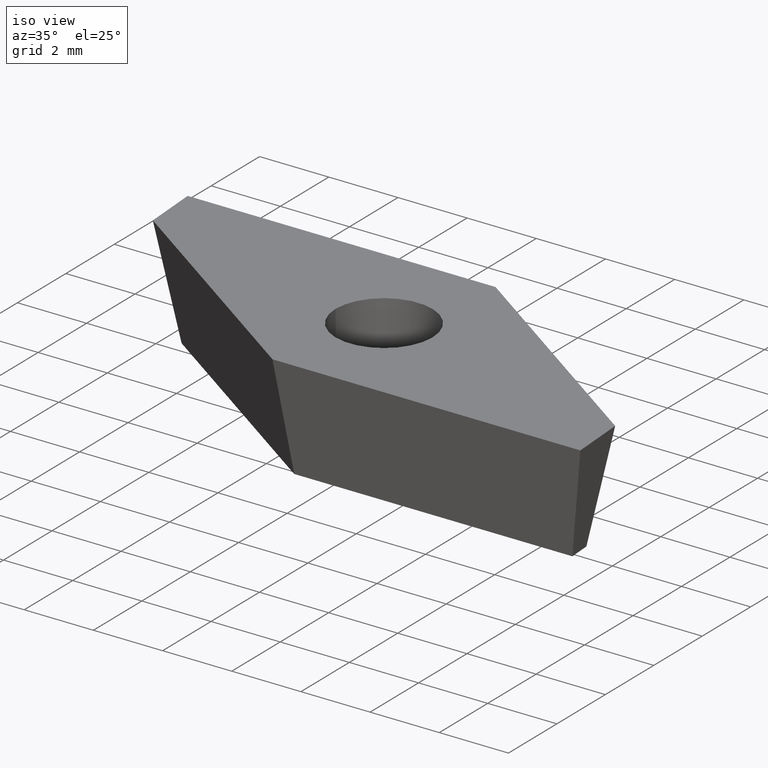
[diagram: clean part render]
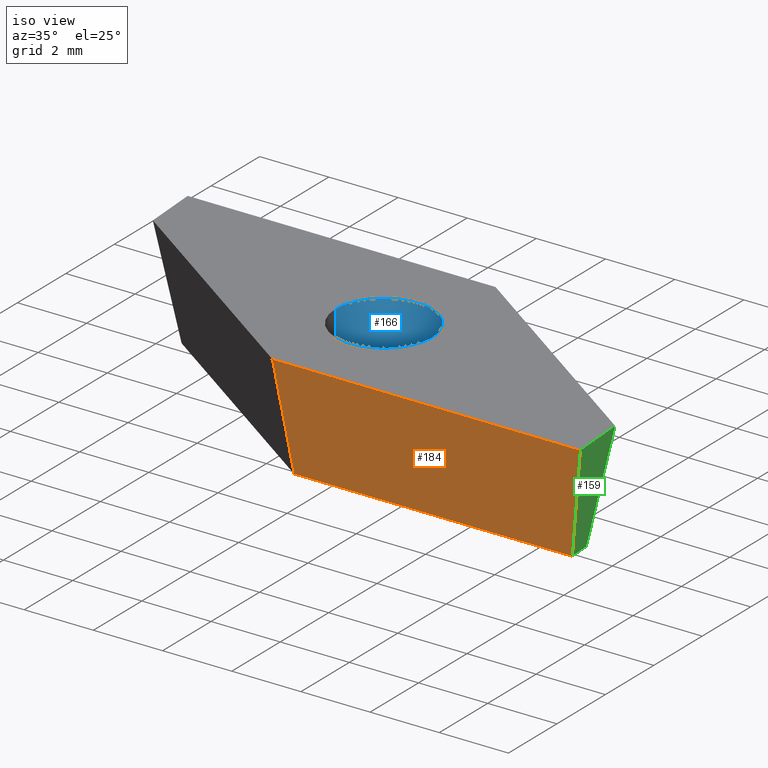
[diagram: same view with three faces highlighted in distinct colors, each labeled with its STEP entity id]
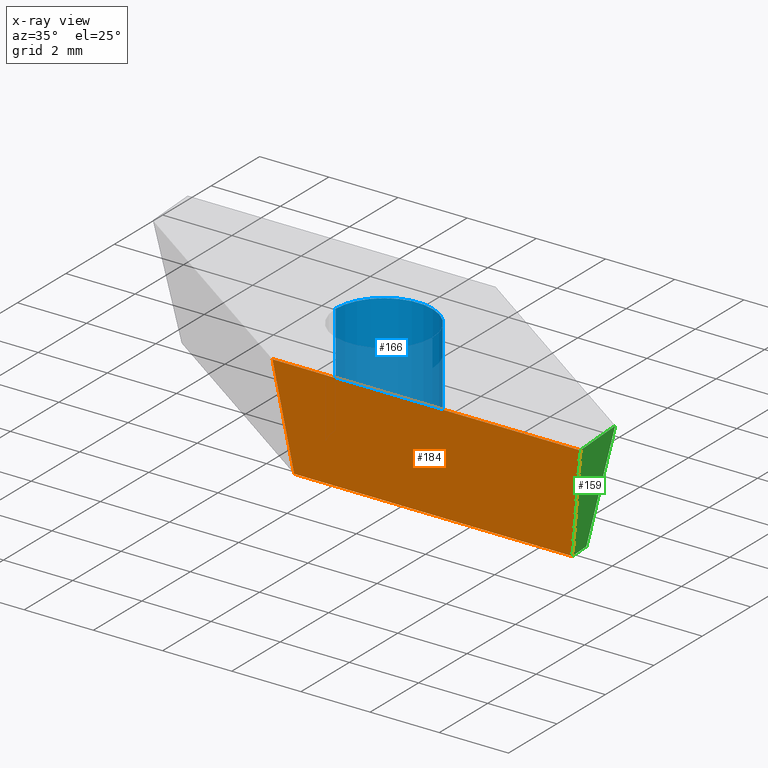
[diagram: x-ray of the same camera — body ghosted, the three highlighted faces saturated]
A machine part, iso view with three faces highlighted in distinct colors.
The next image is the same camera in x-ray (body ghosted, the three faces saturated) — at least one of them is partly hidden behind the body in this view.
Their STEP definitions:

[orange] entity #184 — the highlighted planar face has unit normal (0, -0.9816, -0.1908).
#18 = CARTESIAN_POINT ( 'NONE',  ( -1.001073654690762100, -3.174999999999999800, 0.0000000000000000000 ) ) ;
#21 = CARTESIAN_POINT ( 'NONE',  ( -1.001073654690762100, -2.556870616942053400, -3.180000000000000200 ) ) ;
#28 = VECTOR ( 'NONE', #286, 1000.000000000000000 ) ;
#30 = VECTOR ( 'NONE', #103, 1000.000000000000100 ) ;
#35 = CARTESIAN_POINT ( 'NONE',  ( -1.001073654690761300, -3.174999999999999800, 4.532429341667184100E-017 ) ) ;
#39 = LINE ( 'NONE', #18, #28 ) ;
#43 = LINE ( 'NONE', #129, #30 ) ;
#58 = EDGE_CURVE ( 'NONE', #295, #284, #308, .T. ) ;
#64 = DIRECTION ( 'NONE',  ( -1.000000000000000000, -6.066100545593014700E-017, 0.0000000000000000000 ) ) ;
#69 = FACE_OUTER_BOUND ( 'NONE', #291, .T. ) ;
#70 = ORIENTED_EDGE ( 'NONE', *, *, #317, .T. ) ;
#72 = EDGE_CURVE ( 'NONE', #284, #250, #142, .T. ) ;
#73 = ORIENTED_EDGE ( 'NONE', *, *, #72, .F. ) ;
#103 = DIRECTION ( 'NONE',  ( 0.2004640746510999200, -0.1869357738407769200, 0.9617011860410842300 ) ) ;
#108 = CARTESIAN_POINT ( 'NONE',  ( -0.8061782088420796900, -2.556870616942053400, -3.180000000000000200 ) ) ;
#129 = CARTESIAN_POINT ( 'NONE',  ( 7.900000000000002100, -3.174999999999999400, 0.0000000000000000000 ) ) ;
#135 = VECTOR ( 'NONE', #257, 1000.000000000000100 ) ;
#141 = VECTOR ( 'NONE', #64, 1000.000000000000000 ) ;
#142 = LINE ( 'NONE', #35, #135 ) ;
#150 = CARTESIAN_POINT ( 'NONE',  ( -1.001073654690762100, -3.174999999999999800, 0.0000000000000000000 ) ) ;
#180 = VERTEX_POINT ( 'NONE', #330 ) ;
#184 = ADVANCED_FACE ( 'NONE', ( #69 ), #287, .T. ) ;
#186 = CARTESIAN_POINT ( 'NONE',  ( 7.237137390861799500, -2.556870616942053000, -3.180000000000000200 ) ) ;
#230 = ORIENTED_EDGE ( 'NONE', *, *, #58, .F. ) ;
#231 = ORIENTED_EDGE ( 'NONE', *, *, #321, .T. ) ;
#250 = VERTEX_POINT ( 'NONE', #150 ) ;
#253 = AXIS2_PLACEMENT_3D ( 'NONE', #277, #313, #268 ) ;
#257 = DIRECTION ( 'NONE',  ( -0.06005326349153966600, -0.1904646183547176200, 0.9798555172570124800 ) ) ;
#268 = DIRECTION ( 'NONE',  ( -3.016797551621942100E-017, 0.1908089953765452800, -0.9816271834476639800 ) ) ;
#277 = CARTESIAN_POINT ( 'NONE',  ( -1.001073654690762100, -3.174999999999999800, 0.0000000000000000000 ) ) ;
#284 = VERTEX_POINT ( 'NONE', #108 ) ;
#286 = DIRECTION ( 'NONE',  ( -1.000000000000000000, -6.066100545593014700E-017, 0.0000000000000000000 ) ) ;
#287 = PLANE ( 'NONE',  #253 ) ;
#291 = EDGE_LOOP ( 'NONE', ( #70, #73, #230, #231 ) ) ;
#295 = VERTEX_POINT ( 'NONE', #186 ) ;
#308 = LINE ( 'NONE', #21, #141 ) ;
#313 = DIRECTION ( 'NONE',  ( 5.954649193080809200E-017, -0.9816271834476639800, -0.1908089953765452800 ) ) ;
#317 = EDGE_CURVE ( 'NONE', #180, #250, #39, .T. ) ;
#321 = EDGE_CURVE ( 'NONE', #295, #180, #43, .T. ) ;
#330 = CARTESIAN_POINT ( 'NONE',  ( 7.900000000000002100, -3.174999999999999400, 0.0000000000000000000 ) ) ;

[blue] entity #166 — the highlighted cylindrical surface (partial cylindrical patch) has radius 1.4 mm, axis along (0, 0, 1).
#11 = DIRECTION ( 'NONE',  ( 0.0000000000000000000, 0.0000000000000000000, 1.000000000000000000 ) ) ;
#16 = CARTESIAN_POINT ( 'NONE',  ( -1.399999999999999900, -2.213478753418290800E-016, -3.180000000000000200 ) ) ;
#26 = CIRCLE ( 'NONE', #263, 1.399999999999999900 ) ;
#34 = CIRCLE ( 'NONE', #276, 1.399999999999999900 ) ;
#40 = EDGE_CURVE ( 'NONE', #296, #204, #149, .T. ) ;
#47 = VECTOR ( 'NONE', #309, 1000.000000000000000 ) ;
#55 = LINE ( 'NONE', #87, #47 ) ;
#56 = DIRECTION ( 'NONE',  ( 0.0000000000000000000, 0.0000000000000000000, 1.000000000000000000 ) ) ;
#77 = CARTESIAN_POINT ( 'NONE',  ( -1.399999999999999900, -2.213478753418290800E-016, -3.180000000000000200 ) ) ;
#87 = CARTESIAN_POINT ( 'NONE',  ( 1.399999999999999900, 4.989732346119967600E-017, -3.180000000000000200 ) ) ;
#91 = CYLINDRICAL_SURFACE ( 'NONE', #347, 1.399999999999999900 ) ;
#99 = FACE_OUTER_BOUND ( 'NONE', #322, .T. ) ;
#102 = DIRECTION ( 'NONE',  ( -1.000000000000000000, -1.581056252441636400E-016, 0.0000000000000000000 ) ) ;
#113 = CARTESIAN_POINT ( 'NONE',  ( 0.0000000000000000000, 0.0000000000000000000, 0.0000000000000000000 ) ) ;
#120 = DIRECTION ( 'NONE',  ( -0.0000000000000000000, -0.0000000000000000000, -1.000000000000000000 ) ) ;
#145 = VECTOR ( 'NONE', #56, 1000.000000000000000 ) ;
#148 = CARTESIAN_POINT ( 'NONE',  ( 1.399999999999999900, 4.989732346119967600E-017, 0.0000000000000000000 ) ) ;
#149 = LINE ( 'NONE', #16, #145 ) ;
#153 = CARTESIAN_POINT ( 'NONE',  ( 1.399999999999999900, 4.989732346119967600E-017, -3.180000000000000200 ) ) ;
#156 = ORIENTED_EDGE ( 'NONE', *, *, #285, .T. ) ;
#162 = ORIENTED_EDGE ( 'NONE', *, *, #327, .T. ) ;
#165 = ORIENTED_EDGE ( 'NONE', *, *, #304, .F. ) ;
#166 = ADVANCED_FACE ( 'NONE', ( #99 ), #91, .F. ) ;
#169 = ORIENTED_EDGE ( 'NONE', *, *, #40, .F. ) ;
#204 = VERTEX_POINT ( 'NONE', #274 ) ;
#229 = CARTESIAN_POINT ( 'NONE',  ( -0.0000000000000000000, 0.0000000000000000000, -3.180000000000000200 ) ) ;
#234 = DIRECTION ( 'NONE',  ( -1.000000000000000000, -1.581056252441636400E-016, 0.0000000000000000000 ) ) ;
#263 = AXIS2_PLACEMENT_3D ( 'NONE', #292, #298, #301 ) ;
#274 = CARTESIAN_POINT ( 'NONE',  ( -1.399999999999999900, -2.213478753418290800E-016, 0.0000000000000000000 ) ) ;
#276 = AXIS2_PLACEMENT_3D ( 'NONE', #113, #120, #102 ) ;
#285 = EDGE_CURVE ( 'NONE', #297, #289, #55, .T. ) ;
#289 = VERTEX_POINT ( 'NONE', #148 ) ;
#292 = CARTESIAN_POINT ( 'NONE',  ( -0.0000000000000000000, 0.0000000000000000000, -3.180000000000000200 ) ) ;
#296 = VERTEX_POINT ( 'NONE', #77 ) ;
#297 = VERTEX_POINT ( 'NONE', #153 ) ;
#298 = DIRECTION ( 'NONE',  ( -0.0000000000000000000, -0.0000000000000000000, -1.000000000000000000 ) ) ;
#301 = DIRECTION ( 'NONE',  ( -1.000000000000000000, -1.581056252441636400E-016, 0.0000000000000000000 ) ) ;
#304 = EDGE_CURVE ( 'NONE', #204, #289, #34, .T. ) ;
#309 = DIRECTION ( 'NONE',  ( 0.0000000000000000000, 0.0000000000000000000, 1.000000000000000000 ) ) ;
#322 = EDGE_LOOP ( 'NONE', ( #162, #156, #165, #169 ) ) ;
#327 = EDGE_CURVE ( 'NONE', #296, #297, #26, .T. ) ;
#347 = AXIS2_PLACEMENT_3D ( 'NONE', #229, #11, #234 ) ;

[green] entity #159 — the highlighted planar face has unit normal (0.9792, 0.0685, -0.1908).
#13 = CARTESIAN_POINT ( 'NONE',  ( 7.900000000000002100, -3.174999999999999400, 0.0000000000000000000 ) ) ;
#19 = CARTESIAN_POINT ( 'NONE',  ( 7.900000000000002100, -3.174999999999999400, 0.0000000000000000000 ) ) ;
#22 = VECTOR ( 'NONE', #346, 1000.000000000000100 ) ;
#23 = DIRECTION ( 'NONE',  ( 0.9792359889651950400, 0.06847485084868755500, -0.1908089953765452800 ) ) ;
#25 = LINE ( 'NONE', #283, #22 ) ;
#30 = VECTOR ( 'NONE', #103, 1000.000000000000100 ) ;
#33 = CARTESIAN_POINT ( 'NONE',  ( 7.192231910145610900, -1.914692324122641700, -3.180000000000000200 ) ) ;
#43 = LINE ( 'NONE', #129, #30 ) ;
#59 = VECTOR ( 'NONE', #278, 1000.000000000000100 ) ;
#63 = DIRECTION ( 'NONE',  ( 0.1912579077465619300, 3.023895108716074100E-017, 0.9815398171874677400 ) ) ;
#65 = EDGE_CURVE ( 'NONE', #293, #180, #152, .T. ) ;
#76 = VERTEX_POINT ( 'NONE', #33 ) ;
#96 = LINE ( 'NONE', #110, #59 ) ;
#103 = DIRECTION ( 'NONE',  ( 0.2004640746510999200, -0.1869357738407769200, 0.9617011860410842300 ) ) ;
#110 = CARTESIAN_POINT ( 'NONE',  ( 7.283376349052112200, -3.218118526079754000, -3.180000000000000200 ) ) ;
#121 = FACE_OUTER_BOUND ( 'NONE', #235, .T. ) ;
#129 = CARTESIAN_POINT ( 'NONE',  ( 7.900000000000002100, -3.174999999999999400, 0.0000000000000000000 ) ) ;
#137 = VECTOR ( 'NONE', #242, 1000.000000000000000 ) ;
#152 = LINE ( 'NONE', #13, #137 ) ;
#155 = PLANE ( 'NONE',  #185 ) ;
#159 = ADVANCED_FACE ( 'NONE', ( #121 ), #155, .T. ) ;
#170 = ORIENTED_EDGE ( 'NONE', *, *, #65, .T. ) ;
#172 = ORIENTED_EDGE ( 'NONE', *, *, #321, .F. ) ;
#180 = VERTEX_POINT ( 'NONE', #330 ) ;
#181 = EDGE_CURVE ( 'NONE', #76, #295, #96, .T. ) ;
#182 = ORIENTED_EDGE ( 'NONE', *, *, #181, .F. ) ;
#185 = AXIS2_PLACEMENT_3D ( 'NONE', #19, #23, #63 ) ;
#186 = CARTESIAN_POINT ( 'NONE',  ( 7.237137390861799500, -2.556870616942053000, -3.180000000000000200 ) ) ;
#187 = ORIENTED_EDGE ( 'NONE', *, *, #334, .T. ) ;
#235 = EDGE_LOOP ( 'NONE', ( #170, #172, #182, #187 ) ) ;
#242 = DIRECTION ( 'NONE',  ( 0.06975647374412621800, -0.9975640502598242000, -0.0000000000000000000 ) ) ;
#278 = DIRECTION ( 'NONE',  ( 0.06975647374412621800, -0.9975640502598242000, 0.0000000000000000000 ) ) ;
#283 = CARTESIAN_POINT ( 'NONE',  ( 7.788289079147451900, -1.577459403657730300, 0.0000000000000000000 ) ) ;
#293 = VERTEX_POINT ( 'NONE', #328 ) ;
#295 = VERTEX_POINT ( 'NONE', #186 ) ;
#321 = EDGE_CURVE ( 'NONE', #295, #180, #43, .T. ) ;
#328 = CARTESIAN_POINT ( 'NONE',  ( 7.788289079147451900, -1.577459403657730300, 0.0000000000000000000 ) ) ;
#330 = CARTESIAN_POINT ( 'NONE',  ( 7.900000000000002100, -3.174999999999999400, 0.0000000000000000000 ) ) ;
#334 = EDGE_CURVE ( 'NONE', #76, #293, #25, .T. ) ;
#346 = DIRECTION ( 'NONE',  ( 0.1832382521941805500, 0.1036712150141736300, 0.9775868360970839700 ) ) ;